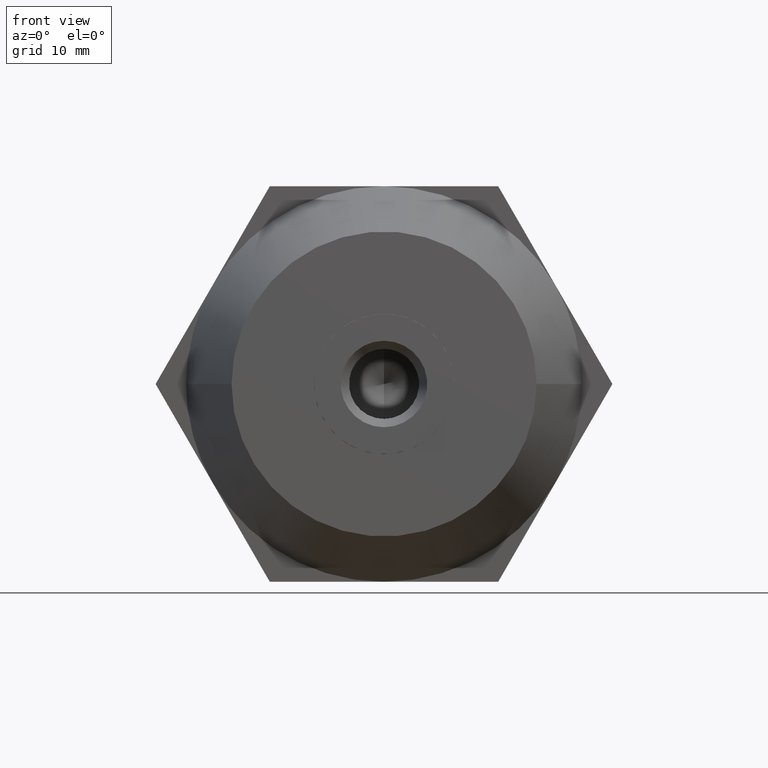
[diagram: clean part render]
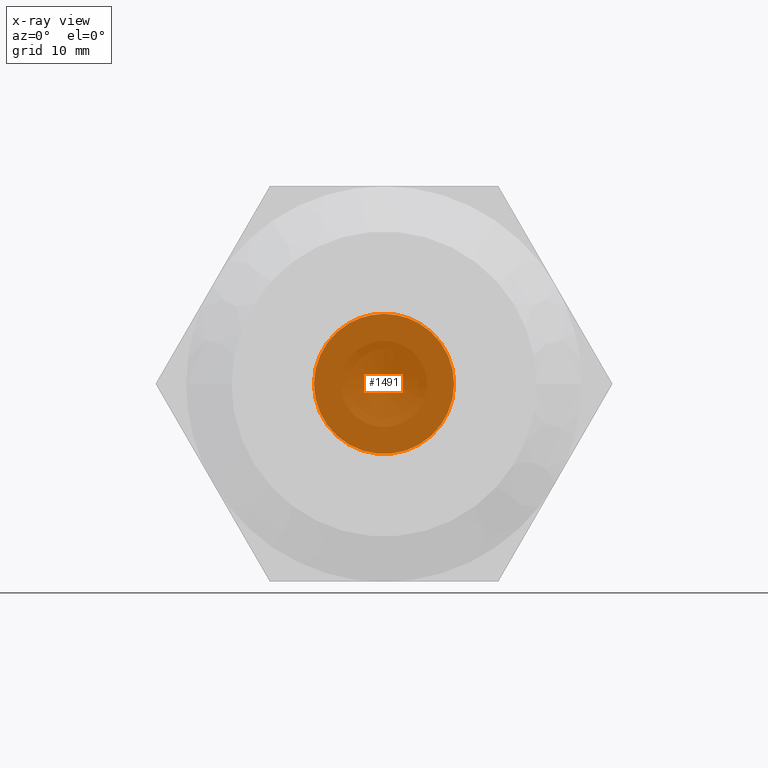
[diagram: x-ray — body ghosted, one internal face saturated and labeled with its STEP entity id]
A machine part, front view, then the same camera in x-ray: the body is ghosted and one INTERNAL B-rep face — a face not visible from any outside direction — is saturated and labeled: STEP entity #1491.
In plain terms, the highlighted planar face has unit normal (0, 1, 0).
Its self-contained STEP definition (entity closure, byte-faithful):
#40 = CARTESIAN_POINT ( 'NONE',  ( 4.249999999999940500, 8.009999999998971300, 7.361215932167770100 ) ) ;
#61 = CARTESIAN_POINT ( 'NONE',  ( -8.500000000000000000, 8.009999999999999800, 0.0000000000000000000 ) ) ;
#167 = VERTEX_POINT ( 'NONE', #231 ) ;
#231 = CARTESIAN_POINT ( 'NONE',  ( -4.250000000000000000, 8.009999999999999800, 7.361215932167730200 ) ) ;
#279 = PLANE ( 'NONE',  #551 ) ;
#546 = VERTEX_POINT ( 'NONE', #3813 ) ;
#551 = AXIS2_PLACEMENT_3D ( 'NONE', #1471, #2702, #3633 ) ;
#652 = EDGE_CURVE ( 'NONE', #2295, #1152, #3116, .T. ) ;
#695 = EDGE_CURVE ( 'NONE', #3330, #1906, #3075, .T. ) ;
#705 = AXIS2_PLACEMENT_3D ( 'NONE', #819, #2956, #1128 ) ;
#743 = CARTESIAN_POINT ( 'NONE',  ( 0.0000000000000000000, 8.009999999999999800, 0.0000000000000000000 ) ) ;
#752 = DIRECTION ( 'NONE',  ( -1.776356839400250500E-015, 0.0000000000000000000, 1.000000000000000000 ) ) ;
#773 = CIRCLE ( 'NONE', #3004, 8.500000000000000000 ) ;
#780 = CARTESIAN_POINT ( 'NONE',  ( 0.0000000000000000000, 8.009999999999999800, 0.0000000000000000000 ) ) ;
#819 = CARTESIAN_POINT ( 'NONE',  ( 0.0000000000000000000, 8.009999999999999800, 0.0000000000000000000 ) ) ;
#823 = ORIENTED_EDGE ( 'NONE', *, *, #695, .F. ) ;
#915 = AXIS2_PLACEMENT_3D ( 'NONE', #3525, #2913, #1117 ) ;
#996 = DIRECTION ( 'NONE',  ( -0.0000000000000000000, -1.000000000000000000, -0.0000000000000000000 ) ) ;
#1117 = DIRECTION ( 'NONE',  ( 1.776356839400250500E-015, 0.0000000000000000000, 1.000000000000000000 ) ) ;
#1128 = DIRECTION ( 'NONE',  ( 0.0000000000000000000, 0.0000000000000000000, 1.000000000000000000 ) ) ;
#1152 = VERTEX_POINT ( 'NONE', #1346 ) ;
#1253 = EDGE_CURVE ( 'NONE', #1152, #546, #2442, .T. ) ;
#1305 = CARTESIAN_POINT ( 'NONE',  ( 0.0000000000000000000, 8.009999999999999800, 0.0000000000000000000 ) ) ;
#1346 = CARTESIAN_POINT ( 'NONE',  ( -4.249999999999935200, 8.009999999998971300, -7.361215932167759500 ) ) ;
#1400 = DIRECTION ( 'NONE',  ( -0.0000000000000000000, -1.000000000000000000, -0.0000000000000000000 ) ) ;
#1471 = CARTESIAN_POINT ( 'NONE',  ( 0.0000000000000000000, 8.009999999999999800, 0.0000000000000000000 ) ) ;
#1474 = DIRECTION ( 'NONE',  ( 0.0000000000000000000, 0.0000000000000000000, 1.000000000000000000 ) ) ;
#1491 = ADVANCED_FACE ( 'NONE', ( #3453 ), #279, .T. ) ;
#1563 = CARTESIAN_POINT ( 'NONE',  ( 0.0000000000000000000, 8.009999999999999800, 8.500000000000000000 ) ) ;
#1600 = DIRECTION ( 'NONE',  ( 0.0000000000000000000, 0.0000000000000000000, 1.000000000000000000 ) ) ;
#1625 = VERTEX_POINT ( 'NONE', #1563 ) ;
#1832 = ORIENTED_EDGE ( 'NONE', *, *, #3967, .F. ) ;
#1887 = EDGE_CURVE ( 'NONE', #1906, #1625, #773, .T. ) ;
#1906 = VERTEX_POINT ( 'NONE', #40 ) ;
#1987 = DIRECTION ( 'NONE',  ( 1.776356839400250500E-015, 0.0000000000000000000, 1.000000000000000000 ) ) ;
#2024 = CIRCLE ( 'NONE', #3318, 8.500000000000000000 ) ;
#2105 = ORIENTED_EDGE ( 'NONE', *, *, #1253, .F. ) ;
#2112 = CIRCLE ( 'NONE', #3870, 8.500000000000000000 ) ;
#2168 = CIRCLE ( 'NONE', #3389, 8.500000000000000000 ) ;
#2286 = ORIENTED_EDGE ( 'NONE', *, *, #1887, .F. ) ;
#2295 = VERTEX_POINT ( 'NONE', #61 ) ;
#2296 = CARTESIAN_POINT ( 'NONE',  ( 8.500000000000000000, 8.009999999999999800, -3.469446951953615000E-015 ) ) ;
#2411 = EDGE_CURVE ( 'NONE', #167, #2295, #2024, .T. ) ;
#2442 = CIRCLE ( 'NONE', #3636, 8.500000000000000000 ) ;
#2548 = ORIENTED_EDGE ( 'NONE', *, *, #652, .F. ) ;
#2702 = DIRECTION ( 'NONE',  ( 0.0000000000000000000, 1.000000000000000000, 0.0000000000000000000 ) ) ;
#2734 = EDGE_CURVE ( 'NONE', #546, #3330, #2112, .T. ) ;
#2893 = DIRECTION ( 'NONE',  ( -0.0000000000000000000, -1.000000000000000000, -0.0000000000000000000 ) ) ;
#2910 = EDGE_LOOP ( 'NONE', ( #2286, #823, #3596, #2105, #2548, #3414, #1832 ) ) ;
#2913 = DIRECTION ( 'NONE',  ( -0.0000000000000000000, -1.000000000000000000, -0.0000000000000000000 ) ) ;
#2956 = DIRECTION ( 'NONE',  ( -0.0000000000000000000, -1.000000000000000000, -0.0000000000000000000 ) ) ;
#2994 = DIRECTION ( 'NONE',  ( -0.0000000000000000000, -1.000000000000000000, -0.0000000000000000000 ) ) ;
#3004 = AXIS2_PLACEMENT_3D ( 'NONE', #3232, #2893, #3540 ) ;
#3017 = CARTESIAN_POINT ( 'NONE',  ( 0.0000000000000000000, 8.009999999999999800, 0.0000000000000000000 ) ) ;
#3075 = CIRCLE ( 'NONE', #915, 8.500000000000000000 ) ;
#3116 = CIRCLE ( 'NONE', #705, 8.500000000000000000 ) ;
#3232 = CARTESIAN_POINT ( 'NONE',  ( 0.0000000000000000000, 8.009999999999999800, 0.0000000000000000000 ) ) ;
#3318 = AXIS2_PLACEMENT_3D ( 'NONE', #1305, #996, #1600 ) ;
#3330 = VERTEX_POINT ( 'NONE', #2296 ) ;
#3389 = AXIS2_PLACEMENT_3D ( 'NONE', #3017, #2994, #1474 ) ;
#3414 = ORIENTED_EDGE ( 'NONE', *, *, #2411, .F. ) ;
#3453 = FACE_OUTER_BOUND ( 'NONE', #2910, .T. ) ;
#3525 = CARTESIAN_POINT ( 'NONE',  ( 0.0000000000000000000, 8.009999999999999800, 0.0000000000000000000 ) ) ;
#3539 = DIRECTION ( 'NONE',  ( -0.0000000000000000000, -1.000000000000000000, -0.0000000000000000000 ) ) ;
#3540 = DIRECTION ( 'NONE',  ( 1.776356839400250500E-015, 0.0000000000000000000, 1.000000000000000000 ) ) ;
#3596 = ORIENTED_EDGE ( 'NONE', *, *, #2734, .F. ) ;
#3633 = DIRECTION ( 'NONE',  ( 0.0000000000000000000, 0.0000000000000000000, 1.000000000000000000 ) ) ;
#3636 = AXIS2_PLACEMENT_3D ( 'NONE', #780, #3539, #1987 ) ;
#3813 = CARTESIAN_POINT ( 'NONE',  ( 4.250000000000060400, 8.009999999998971300, -7.361215932167689300 ) ) ;
#3870 = AXIS2_PLACEMENT_3D ( 'NONE', #743, #1400, #752 ) ;
#3967 = EDGE_CURVE ( 'NONE', #1625, #167, #2168, .T. ) ;